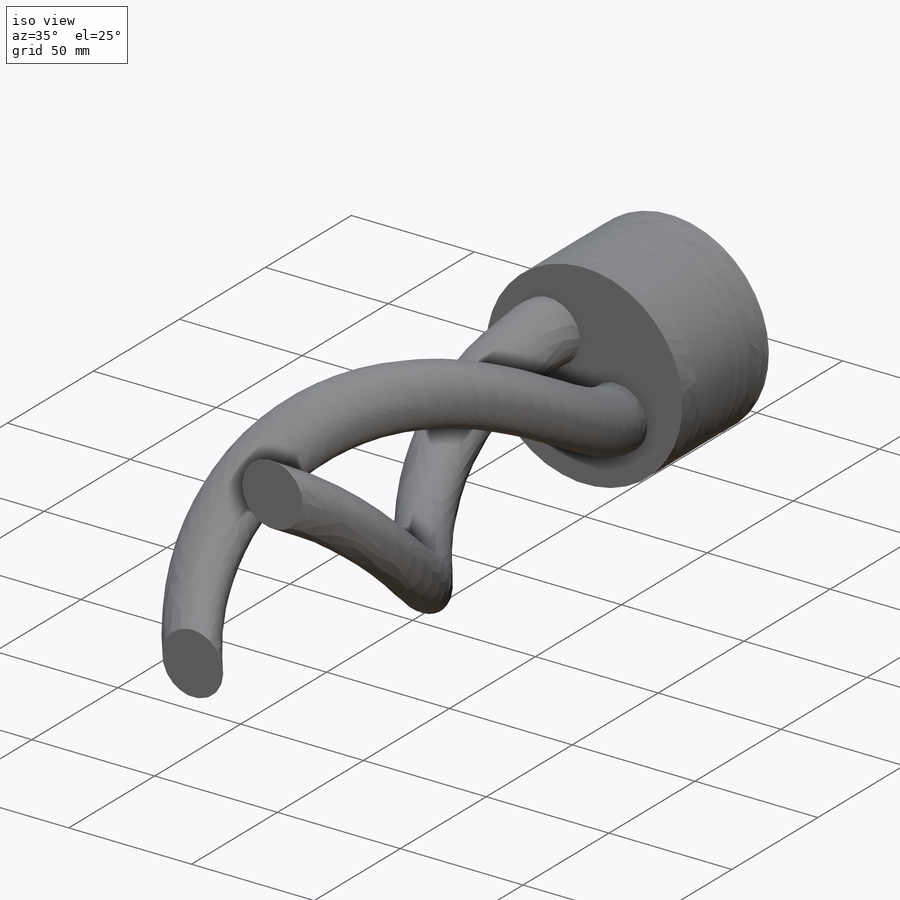
[diagram: iso view]
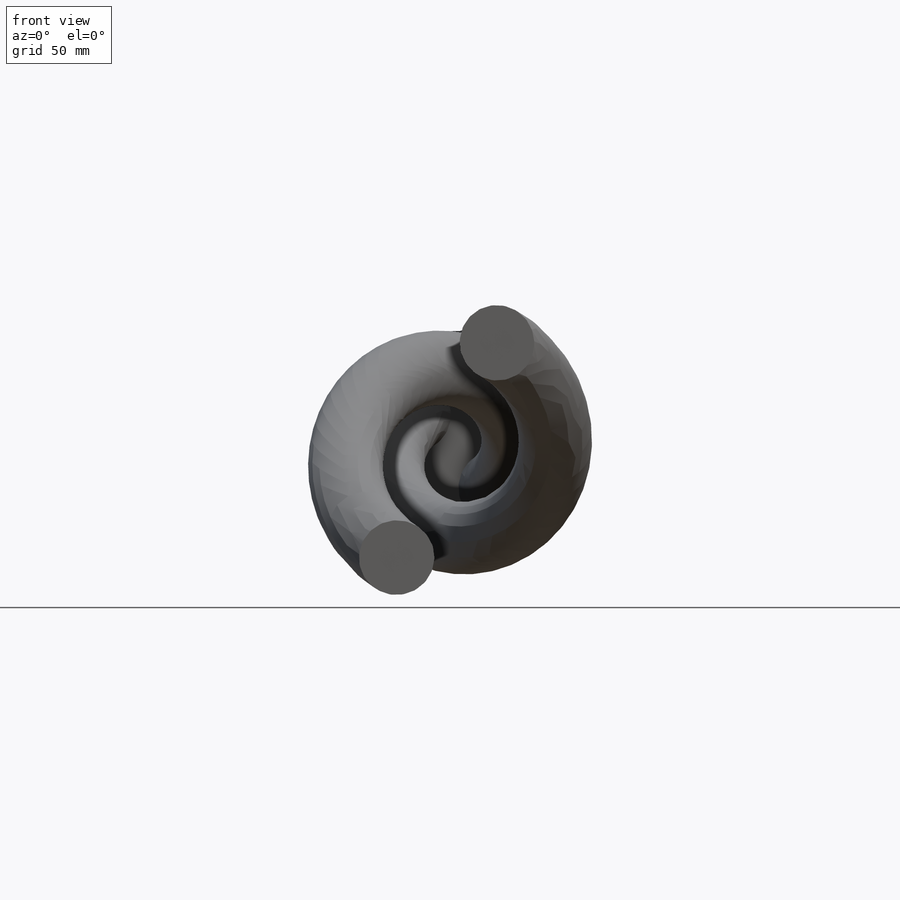
[diagram: front view]
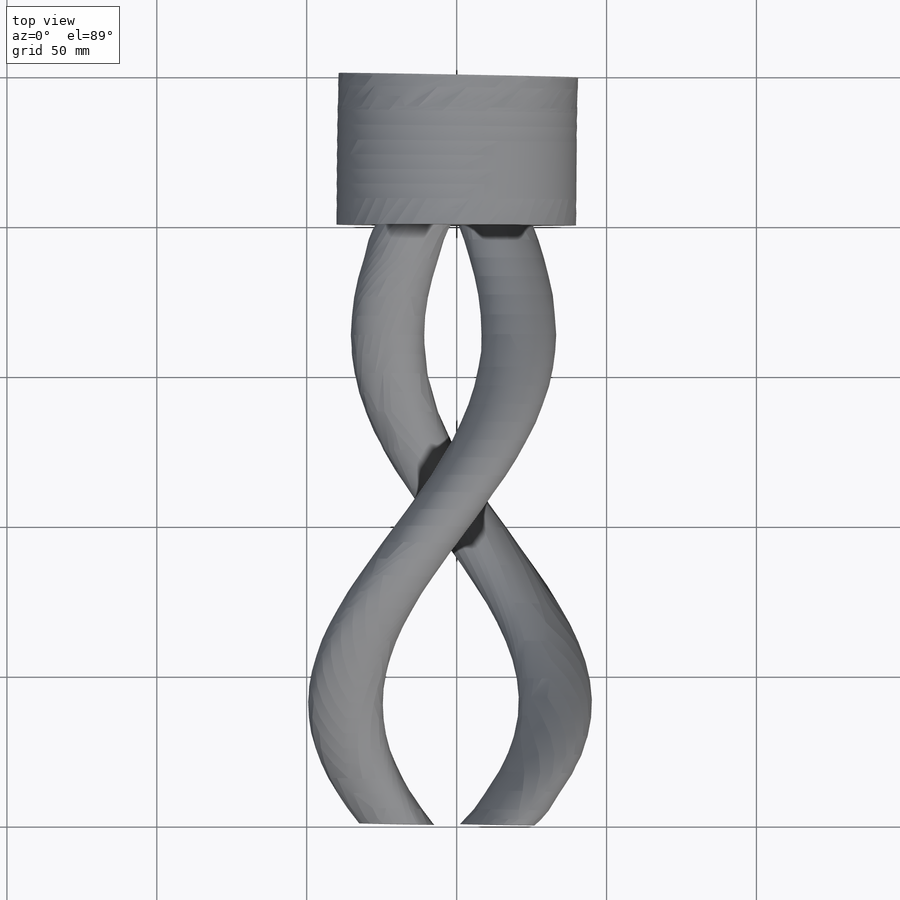
[diagram: top view]
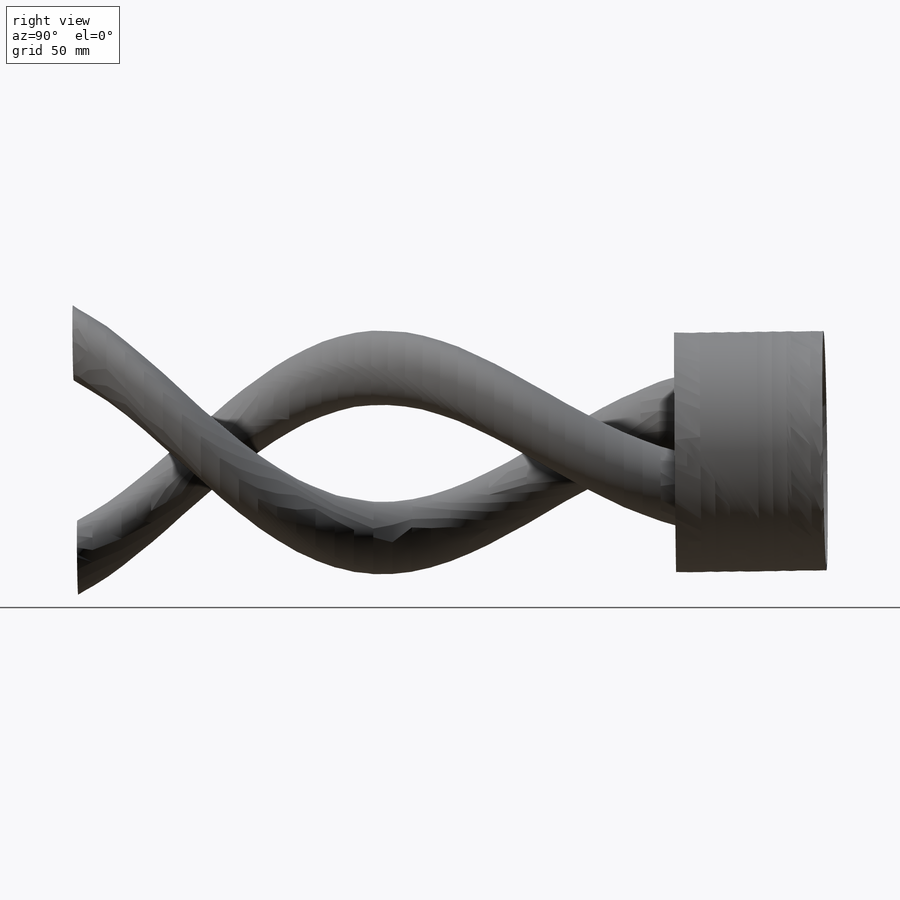
[diagram: right view]
SOLIDWORKS PART (.sldprt)
format: sldprt  version: not decoded by parser v0  size: 546,304 bytes
history: native  units: mm
features: sketch x8, plane x5, material x1, shell x1 + 1 further entry (+8 scaffold rows collapsed)
feature tree (24):
  scaffold x8  (default folders/planes/origin — collapsed)
  material  "Material <nicht festgelegt>"
  "Beschriftungen"  RD1=80mm RD2=25mm
  plane  "Vorne"
  plane  "Oben"
  plane  "Rechts"
  plane  "Ebene1"  Offset=50mm
  plane  "Ebene2"  Offset=200mm
  sketch  "Skizze1"  dims[D1=80.0mm]
  sketch  "Skizze3"  dims[D1=~42.302638mm]
  sketch  "Skizze6"  dims[D1=25.0mm]
  sketch  "Skizze8"  dims[D1=25.0mm]
  sketch  "Skizze9"  dims[D1=25.0mm D2=25.0mm D3=50.0mm]
  sketch  "Ausformung8"
  sketch  "Skizze10"  dims[D1=25.0mm]
  sketch  "Ausformung9"  dims[D0=360.0deg D1=0.0mm D2=0.0mm]
  shell  "Wandung1"  Thickness=2mm
decode coverage: 8 of 9 modeling features carry decoded parameters; 1 rows unclassified (native names shown)
note: ~ marks probable driven/reference dimensions
note: suppression state not decoded; provenance and decode notes live in map.json
